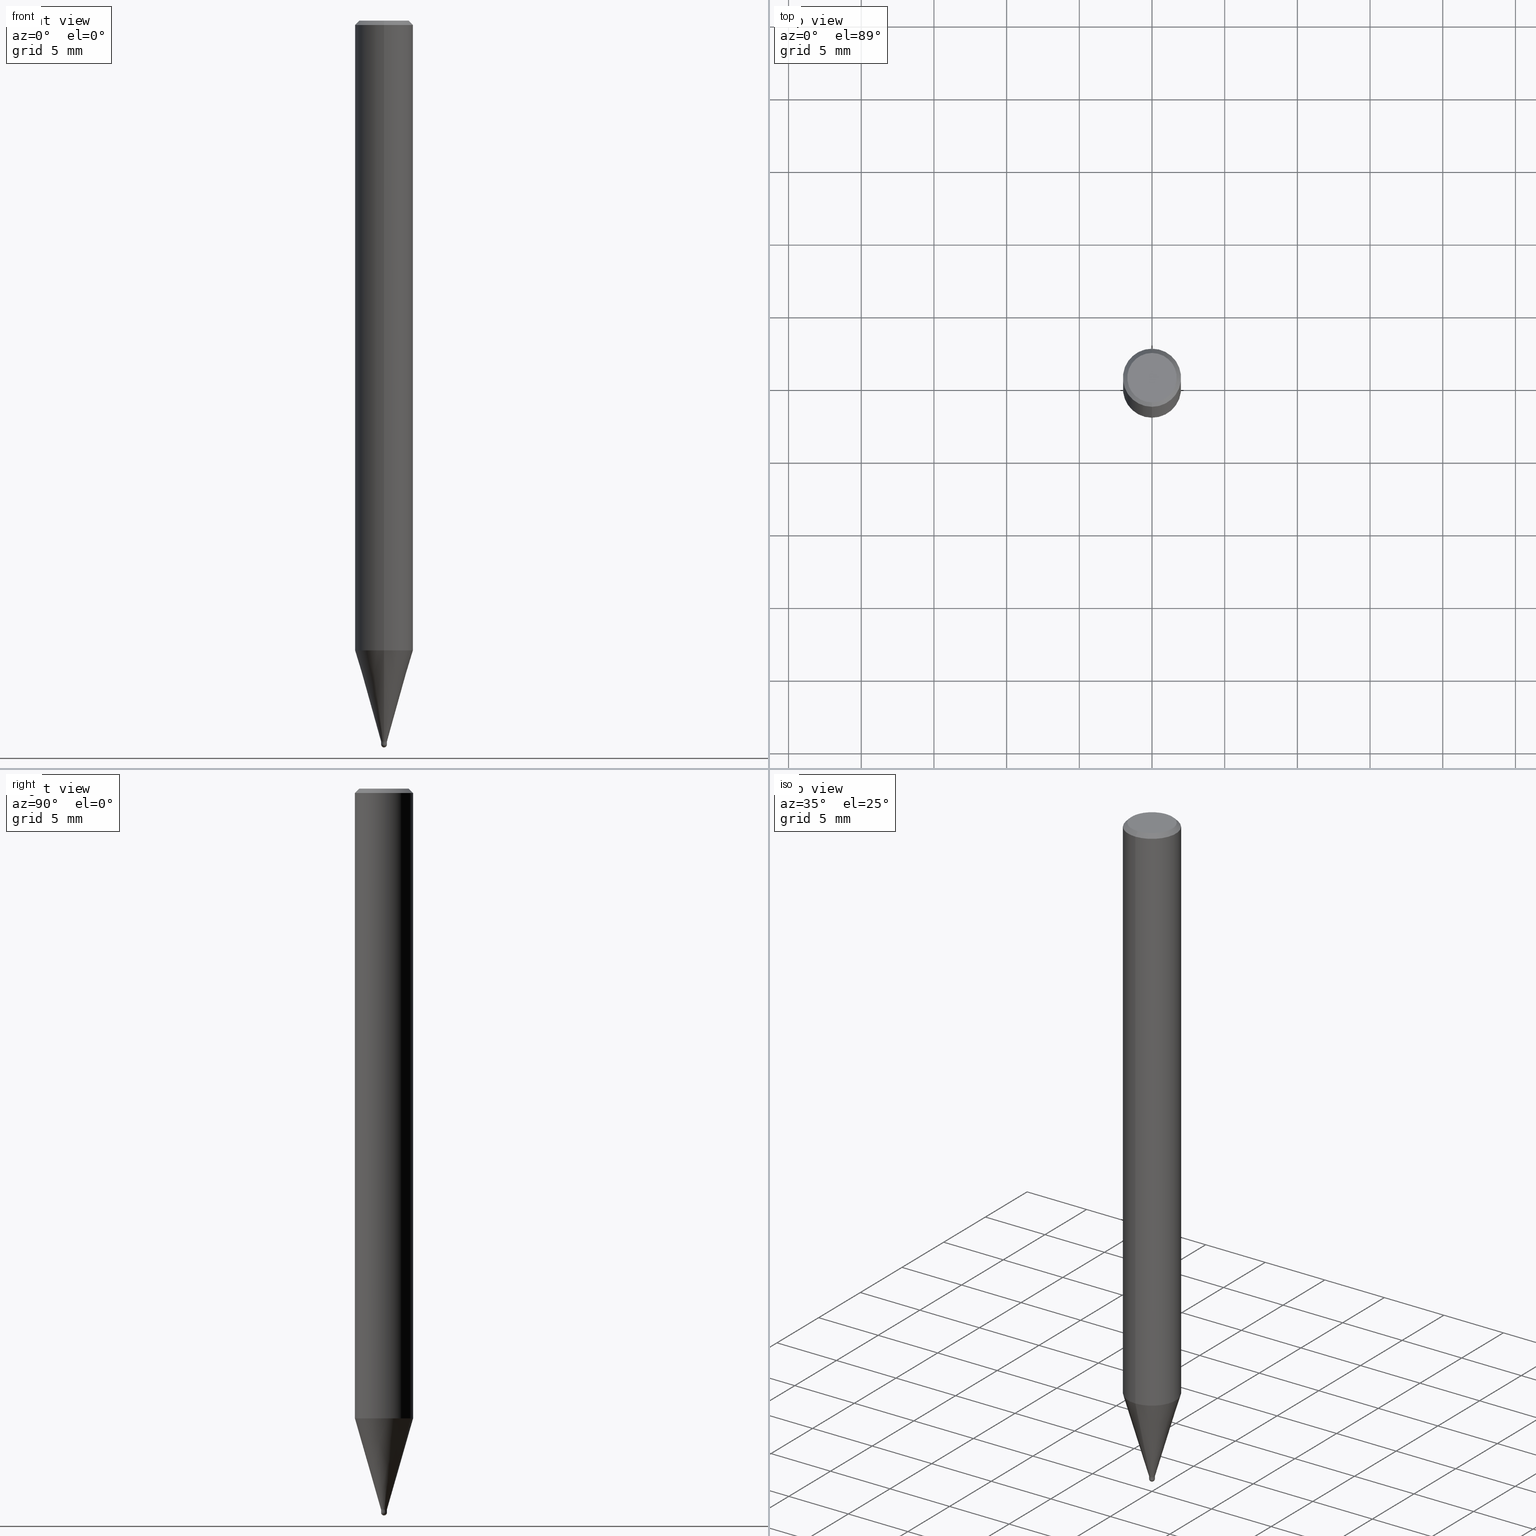
[diagram: canonical four-view strip — front | top / right | iso, engineering-drawing reading convention]
A machine part, canonical four-view strip (front | top / right | iso — engineering-drawing reading convention). The complete STEP part file that produces these views, byte-faithful:
ISO-10303-21;
HEADER;
FILE_DESCRIPTION(('no description'),'unknown implementation level');
FILE_NAME('HSB2004-0040-Huellk.stp','  ',('CIMSOURCE GmbH'),('CADClick - KiM GmbH - www.kimweb.de'),'unknown preprocess','ACIS','unknown authorization');
FILE_SCHEMA(('automotive_design'));
ENDSEC;
DATA;
#1=MECHANICAL_DESIGN_GEOMETRIC_PRESENTATION_REPRESENTATION(' ',(#14,#15,#16,#17,#18,#19,#20,#21,#22,#23,#24,#25,#26,#27,#28,#29,#30,#31,#32,#33,#34,#35,#36,#37,#38,#39,#40,#41,#42,#43,#44,#45,#46,#47,#48,#49,#50,#51,#52,#53,#54,#55,#56,#57,#58,#59,#60,#61,#62,#63,#64,#65,#66),#10);
#2=PRODUCT_DEFINITION_CONTEXT('',#67,'design');
#3=APPLICATION_PROTOCOL_DEFINITION('INTERNATIONAL STANDARD','automotive_design',1994,#67);
#4=PRODUCT_CATEGORY_RELATIONSHIP('NONE','NONE',#68,#69);
#5=SHAPE_DEFINITION_REPRESENTATION(#70,#71);
#6=PRODUCT_DEFINITION_CONTEXT('',#72,'design');
#7=APPLICATION_PROTOCOL_DEFINITION('INTERNATIONAL STANDARD','automotive_design',1994,#72);
#8=PRODUCT_CATEGORY_RELATIONSHIP('NONE','NONE',#73,#74);
#9=SHAPE_DEFINITION_REPRESENTATION(#75,#76);
#10= (GEOMETRIC_REPRESENTATION_CONTEXT(3)GLOBAL_UNCERTAINTY_ASSIGNED_CONTEXT((#79))GLOBAL_UNIT_ASSIGNED_CONTEXT((#81,#82,#83))REPRESENTATION_CONTEXT('NONE','WORKSPACE'));
#14=STYLED_ITEM('',(#85),#86);
#15=STYLED_ITEM('',(#87),#88);
#16=STYLED_ITEM('',(#89),#90);
#17=STYLED_ITEM('',(#91),#92);
#18=STYLED_ITEM('',(#93),#94);
#19=STYLED_ITEM('',(#95),#96);
#20=STYLED_ITEM('',(#97),#98);
#21=STYLED_ITEM('',(#99),#100);
#22=STYLED_ITEM('',(#101),#102);
#23=STYLED_ITEM('',(#103),#104);
#24=STYLED_ITEM('',(#105),#106);
#25=STYLED_ITEM('',(#107),#108);
#26=STYLED_ITEM('',(#109),#110);
#27=STYLED_ITEM('',(#111),#112);
#28=STYLED_ITEM('',(#113),#114);
#29=STYLED_ITEM('',(#115),#116);
#30=STYLED_ITEM('',(#117),#118);
#31=STYLED_ITEM('',(#119),#120);
#32=STYLED_ITEM('',(#121),#122);
#33=STYLED_ITEM('',(#123),#124);
#34=STYLED_ITEM('',(#125),#126);
#35=STYLED_ITEM('',(#127),#128);
#36=STYLED_ITEM('',(#129),#130);
#37=STYLED_ITEM('',(#131),#132);
#38=STYLED_ITEM('',(#133),#134);
#39=STYLED_ITEM('',(#135),#136);
#40=STYLED_ITEM('',(#137),#138);
#41=STYLED_ITEM('',(#139),#140);
#42=STYLED_ITEM('',(#141),#142);
#43=STYLED_ITEM('',(#143),#144);
#44=STYLED_ITEM('',(#145),#146);
#45=STYLED_ITEM('',(#147),#148);
#46=STYLED_ITEM('',(#149),#150);
#47=STYLED_ITEM('',(#151),#152);
#48=STYLED_ITEM('',(#153),#154);
#49=STYLED_ITEM('',(#155),#156);
#50=STYLED_ITEM('',(#157),#158);
#51=STYLED_ITEM('',(#159),#160);
#52=STYLED_ITEM('',(#161),#162);
#53=STYLED_ITEM('',(#163),#164);
#54=STYLED_ITEM('',(#165),#166);
#55=STYLED_ITEM('',(#167),#168);
#56=STYLED_ITEM('',(#169),#170);
#57=STYLED_ITEM('',(#171),#172);
#58=STYLED_ITEM('',(#173),#174);
#59=STYLED_ITEM('',(#175),#176);
#60=STYLED_ITEM('',(#177),#178);
#61=STYLED_ITEM('',(#179),#180);
#62=STYLED_ITEM('',(#181),#182);
#63=STYLED_ITEM('',(#183),#184);
#64=STYLED_ITEM('',(#185),#186);
#65=STYLED_ITEM('',(#187),#188);
#66=STYLED_ITEM('',(#189),#190);
#67=APPLICATION_CONTEXT(' ');
#68=PRODUCT_CATEGORY('part','NONE');
#69=PRODUCT_RELATED_PRODUCT_CATEGORY('detail',' ',(#191));
#70=PRODUCT_DEFINITION_SHAPE('NONE','NONE',#192);
#71=ADVANCED_BREP_SHAPE_REPRESENTATION('1',(#124,#193),#10);
#72=APPLICATION_CONTEXT(' ');
#73=PRODUCT_CATEGORY('part','NONE');
#74=PRODUCT_RELATED_PRODUCT_CATEGORY('detail',' ',(#194));
#75=PRODUCT_DEFINITION_SHAPE('NONE','NONE',#195);
#76=ADVANCED_BREP_SHAPE_REPRESENTATION('2',(#120,#196),#10);
#79=UNCERTAINTY_MEASURE_WITH_UNIT(LENGTH_MEASURE(1.0E-006),#81,'','');
#81= (CONVERSION_BASED_UNIT('MILLIMETRE',#199)LENGTH_UNIT()NAMED_UNIT(#202));
#82= (NAMED_UNIT(#204)PLANE_ANGLE_UNIT()SI_UNIT($,.RADIAN.));
#83= (NAMED_UNIT(#204)SOLID_ANGLE_UNIT()SI_UNIT($,.STERADIAN.));
#85=PRESENTATION_STYLE_ASSIGNMENT((#210));
#86=ADVANCED_FACE('',(#211),#212,.T.);
#87=PRESENTATION_STYLE_ASSIGNMENT((#213));
#88=EDGE_CURVE('',#108,#122,#214,.T.);
#89=PRESENTATION_STYLE_ASSIGNMENT((#215));
#90=VERTEX_POINT('',#216);
#91=PRESENTATION_STYLE_ASSIGNMENT((#217));
#92=ADVANCED_FACE('',(#218),#219,.T.);
#93=PRESENTATION_STYLE_ASSIGNMENT((#220));
#94=VERTEX_POINT('',#221);
#95=PRESENTATION_STYLE_ASSIGNMENT((#222));
#96=EDGE_CURVE('',#108,#102,#223,.T.);
#97=PRESENTATION_STYLE_ASSIGNMENT((#224));
#98=EDGE_CURVE('',#114,#142,#225,.T.);
#99=PRESENTATION_STYLE_ASSIGNMENT((#226));
#100=VERTEX_POINT('',#227);
#101=PRESENTATION_STYLE_ASSIGNMENT((#228));
#102=VERTEX_POINT('',#229);
#103=PRESENTATION_STYLE_ASSIGNMENT((#230));
#104=VERTEX_POINT('',#231);
#105=PRESENTATION_STYLE_ASSIGNMENT((#232));
#106=EDGE_CURVE('',#122,#108,#233,.T.);
#107=PRESENTATION_STYLE_ASSIGNMENT((#234));
#108=VERTEX_POINT('',#235);
#109=PRESENTATION_STYLE_ASSIGNMENT((#236));
#110=VERTEX_POINT('',#237);
#111=PRESENTATION_STYLE_ASSIGNMENT((#238));
#112=EDGE_CURVE('',#122,#100,#239,.T.);
#113=PRESENTATION_STYLE_ASSIGNMENT((#240));
#114=VERTEX_POINT('',#241);
#115=PRESENTATION_STYLE_ASSIGNMENT((#242));
#116=EDGE_CURVE('',#114,#168,#243,.T.);
#117=PRESENTATION_STYLE_ASSIGNMENT((#244));
#118=EDGE_CURVE('',#110,#132,#245,.T.);
#119=PRESENTATION_STYLE_ASSIGNMENT((#246));
#120=MANIFOLD_SOLID_BREP('2',#247);
#121=PRESENTATION_STYLE_ASSIGNMENT((#248));
#122=VERTEX_POINT('',#249);
#123=PRESENTATION_STYLE_ASSIGNMENT((#250));
#124=MANIFOLD_SOLID_BREP('1',#251);
#125=PRESENTATION_STYLE_ASSIGNMENT((#252));
#126=EDGE_CURVE('',#114,#142,#253,.T.);
#127=PRESENTATION_STYLE_ASSIGNMENT((#254));
#128=EDGE_CURVE('',#168,#104,#255,.T.);
#129=PRESENTATION_STYLE_ASSIGNMENT((#256));
#130=ADVANCED_FACE('',(#257),#258,.T.);
#131=PRESENTATION_STYLE_ASSIGNMENT((#259));
#132=VERTEX_POINT('',#260);
#133=PRESENTATION_STYLE_ASSIGNMENT((#261));
#134=EDGE_CURVE('',#132,#110,#262,.T.);
#135=PRESENTATION_STYLE_ASSIGNMENT((#263));
#136=EDGE_CURVE('',#94,#132,#264,.T.);
#137=PRESENTATION_STYLE_ASSIGNMENT((#265));
#138=ADVANCED_FACE('',(#266),#267,.T.);
#139=PRESENTATION_STYLE_ASSIGNMENT((#268));
#140=EDGE_CURVE('',#104,#142,#269,.T.);
#141=PRESENTATION_STYLE_ASSIGNMENT((#270));
#142=VERTEX_POINT('',#271);
#143=PRESENTATION_STYLE_ASSIGNMENT((#272));
#144=ADVANCED_FACE('',(#273),#274,.T.);
#145=PRESENTATION_STYLE_ASSIGNMENT((#275));
#146=EDGE_CURVE('',#104,#168,#276,.T.);
#147=PRESENTATION_STYLE_ASSIGNMENT((#277));
#148=EDGE_CURVE('',#90,#122,#278,.T.);
#149=PRESENTATION_STYLE_ASSIGNMENT((#279));
#150=ADVANCED_FACE('',(#280),#281,.T.);
#151=PRESENTATION_STYLE_ASSIGNMENT((#282));
#152=EDGE_CURVE('',#110,#188,#283,.T.);
#153=PRESENTATION_STYLE_ASSIGNMENT((#284));
#154=ADVANCED_FACE('',(#285),#286,.T.);
#155=PRESENTATION_STYLE_ASSIGNMENT((#287));
#156=VERTEX_POINT('',#288);
#157=PRESENTATION_STYLE_ASSIGNMENT((#289));
#158=ADVANCED_FACE('',(#290),#291,.T.);
#159=PRESENTATION_STYLE_ASSIGNMENT((#292));
#160=ADVANCED_FACE('',(#293),#294,.T.);
#161=PRESENTATION_STYLE_ASSIGNMENT((#295));
#162=ADVANCED_FACE('',(#296),#297,.T.);
#163=PRESENTATION_STYLE_ASSIGNMENT((#298));
#164=EDGE_CURVE('',#142,#114,#299,.T.);
#165=PRESENTATION_STYLE_ASSIGNMENT((#300));
#166=EDGE_CURVE('',#156,#100,#301,.T.);
#167=PRESENTATION_STYLE_ASSIGNMENT((#302));
#168=VERTEX_POINT('',#303);
#169=PRESENTATION_STYLE_ASSIGNMENT((#304));
#170=EDGE_CURVE('',#102,#90,#305,.T.);
#171=PRESENTATION_STYLE_ASSIGNMENT((#306));
#172=ADVANCED_FACE('',(#307,#308),#309,.T.);
#173=PRESENTATION_STYLE_ASSIGNMENT((#310));
#174=EDGE_CURVE('',#156,#108,#311,.T.);
#175=PRESENTATION_STYLE_ASSIGNMENT((#312));
#176=EDGE_CURVE('',#188,#94,#313,.T.);
#177=PRESENTATION_STYLE_ASSIGNMENT((#314));
#178=EDGE_CURVE('',#100,#156,#315,.T.);
#179=PRESENTATION_STYLE_ASSIGNMENT((#316));
#180=EDGE_CURVE('',#94,#188,#317,.T.);
#181=PRESENTATION_STYLE_ASSIGNMENT((#318));
#182=ADVANCED_FACE('',(#319),#320,.T.);
#183=PRESENTATION_STYLE_ASSIGNMENT((#321));
#184=ADVANCED_FACE('',(#322),#323,.T.);
#185=PRESENTATION_STYLE_ASSIGNMENT((#324));
#186=EDGE_CURVE('',#90,#102,#325,.T.);
#187=PRESENTATION_STYLE_ASSIGNMENT((#326));
#188=VERTEX_POINT('',#327);
#189=PRESENTATION_STYLE_ASSIGNMENT((#328));
#190=ADVANCED_FACE('',(#329),#330,.T.);
#191=PRODUCT('1','1','PART-1-DESC',(#331));
#192=PRODUCT_DEFINITION('NONE','NONE',#332,#2);
#193=AXIS2_PLACEMENT_3D('',#333,#334,#335);
#194=PRODUCT('2','2','PART-2-DESC',(#336));
#195=PRODUCT_DEFINITION('NONE','NONE',#337,#6);
#196=AXIS2_PLACEMENT_3D('',#338,#339,#340);
#199=LENGTH_MEASURE_WITH_UNIT(LENGTH_MEASURE(1.0),#341);
#202=DIMENSIONAL_EXPONENTS(1.0,0.0,0.0,0.0,0.0,0.0,0.0);
#204=DIMENSIONAL_EXPONENTS(0.0,0.0,0.0,0.0,0.0,0.0,0.0);
#210=SURFACE_STYLE_USAGE(.BOTH.,#342);
#211=FACE_OUTER_BOUND('',#343,.T.);
#212=PLANE('',#344);
#213=CURVE_STYLE('',#345,POSITIVE_LENGTH_MEASURE(1.0E-006),#346);
#214=CIRCLE('',#347,2.0);
#215=POINT_STYLE(' ',#348,POSITIVE_LENGTH_MEASURE(1.0E-006),#349);
#216=CARTESIAN_POINT('',(2.44921270764475E-016,-2.0,-43.323));
#217=SURFACE_STYLE_USAGE(.BOTH.,#350);
#218=FACE_OUTER_BOUND('',#351,.T.);
#219=CONICAL_SURFACE('',#352,1.85,0.785398163397453);
#220=POINT_STYLE(' ',#353,POSITIVE_LENGTH_MEASURE(1.0E-006),#354);
#221=CARTESIAN_POINT('',(2.44860040446785E-017,-0.19995,-49.6));
#222=CURVE_STYLE('',#355,POSITIVE_LENGTH_MEASURE(1.0E-006),#356);
#223=LINE('',#357,#358);
#224=CURVE_STYLE('',#359,POSITIVE_LENGTH_MEASURE(1.0E-006),#360);
#225=CIRCLE('',#361,0.2);
#226=POINT_STYLE(' ',#362,POSITIVE_LENGTH_MEASURE(1.0E-006),#363);
#227=CARTESIAN_POINT('',(2.08183080149804E-016,-1.7,0.0));
#228=POINT_STYLE(' ',#364,POSITIVE_LENGTH_MEASURE(1.0E-006),#365);
#229=CARTESIAN_POINT('',(0.0,2.0,-43.323));
#230=POINT_STYLE(' ',#366,POSITIVE_LENGTH_MEASURE(1.0E-006),#367);
#231=CARTESIAN_POINT('',(0.0,0.1999,-49.6));
#232=CURVE_STYLE('',#368,POSITIVE_LENGTH_MEASURE(1.0E-006),#369);
#233=CIRCLE('',#370,2.0);
#234=POINT_STYLE(' ',#371,POSITIVE_LENGTH_MEASURE(1.0E-006),#372);
#235=CARTESIAN_POINT('',(0.0,2.0,-0.299999999999997));
#236=POINT_STYLE(' ',#373,POSITIVE_LENGTH_MEASURE(1.0E-006),#374);
#237=CARTESIAN_POINT('',(0.0,1.99995,-43.323));
#238=CURVE_STYLE('',#375,POSITIVE_LENGTH_MEASURE(1.0E-006),#376);
#239=LINE('',#377,#378);
#240=POINT_STYLE(' ',#379,POSITIVE_LENGTH_MEASURE(1.0E-006),#380);
#241=CARTESIAN_POINT('',(2.44921270764475E-017,-0.2,-49.8));
#242=CURVE_STYLE('',#381,POSITIVE_LENGTH_MEASURE(1.0E-006),#382);
#243=LINE('',#383,#384);
#244=CURVE_STYLE('',#385,POSITIVE_LENGTH_MEASURE(1.0E-006),#386);
#245=CIRCLE('',#387,1.99995);
#246=SURFACE_STYLE_USAGE(.BOTH.,#388);
#247=CLOSED_SHELL('',(#158,#184,#162,#154,#160));
#248=POINT_STYLE(' ',#389,POSITIVE_LENGTH_MEASURE(1.0E-006),#390);
#249=CARTESIAN_POINT('',(2.44921270764475E-016,-2.0,-0.299999999999997));
#250=SURFACE_STYLE_USAGE(.BOTH.,#391);
#251=CLOSED_SHELL('',(#138,#150,#92,#172,#86,#190,#182,#130,#144));
#252=CURVE_STYLE('',#392,POSITIVE_LENGTH_MEASURE(1.0E-006),#393);
#253=CIRCLE('',#394,0.2);
#254=CURVE_STYLE('',#395,POSITIVE_LENGTH_MEASURE(1.0E-006),#396);
#255=CIRCLE('',#397,0.1999);
#256=SURFACE_STYLE_USAGE(.BOTH.,#398);
#257=FACE_OUTER_BOUND('',#399,.T.);
#258=CONICAL_SURFACE('',#400,1.09995,0.279267285283396);
#259=POINT_STYLE(' ',#401,POSITIVE_LENGTH_MEASURE(1.0E-006),#402);
#260=CARTESIAN_POINT('',(2.44915147732706E-016,-1.99995,-43.323));
#261=CURVE_STYLE('',#403,POSITIVE_LENGTH_MEASURE(1.0E-006),#404);
#262=CIRCLE('',#405,1.99995);
#263=CURVE_STYLE('',#406,POSITIVE_LENGTH_MEASURE(1.0E-006),#407);
#264=LINE('',#408,#409);
#265=SURFACE_STYLE_USAGE(.BOTH.,#410);
#266=FACE_OUTER_BOUND('',#411,.T.);
#267=CONICAL_SURFACE('',#412,1.09995,0.279267285283396);
#268=CURVE_STYLE('',#413,POSITIVE_LENGTH_MEASURE(1.0E-006),#414);
#269=LINE('',#415,#416);
#270=POINT_STYLE(' ',#417,POSITIVE_LENGTH_MEASURE(1.0E-006),#418);
#271=CARTESIAN_POINT('',(0.0,0.2,-49.8));
#272=SURFACE_STYLE_USAGE(.BOTH.,#419);
#273=FACE_OUTER_BOUND('',#420,.T.);
#274=PLANE('',#421);
#275=CURVE_STYLE('',#422,POSITIVE_LENGTH_MEASURE(1.0E-006),#423);
#276=CIRCLE('',#424,0.1999);
#277=CURVE_STYLE('',#425,POSITIVE_LENGTH_MEASURE(1.0E-006),#426);
#278=LINE('',#427,#428);
#279=SURFACE_STYLE_USAGE(.BOTH.,#429);
#280=FACE_OUTER_BOUND('',#430,.T.);
#281=CYLINDRICAL_SURFACE('',#431,2.0);
#282=CURVE_STYLE('',#432,POSITIVE_LENGTH_MEASURE(1.0E-006),#433);
#283=LINE('',#434,#435);
#284=SURFACE_STYLE_USAGE(.BOTH.,#436);
#285=FACE_OUTER_BOUND('',#437,.T.);
#286=CONICAL_SURFACE('',#438,0.19995,0.000499999958333423);
#287=POINT_STYLE(' ',#439,POSITIVE_LENGTH_MEASURE(1.0E-006),#440);
#288=CARTESIAN_POINT('',(0.0,1.7,0.0));
#289=SURFACE_STYLE_USAGE(.BOTH.,#441);
#290=FACE_OUTER_BOUND('',#442,.T.);
#291=SPHERICAL_SURFACE('',#443,0.2);
#292=SURFACE_STYLE_USAGE(.BOTH.,#444);
#293=FACE_OUTER_BOUND('',#445,.T.);
#294=SPHERICAL_SURFACE('',#446,0.2);
#295=SURFACE_STYLE_USAGE(.BOTH.,#447);
#296=FACE_OUTER_BOUND('',#448,.T.);
#297=PLANE('',#449);
#298=CURVE_STYLE('',#450,POSITIVE_LENGTH_MEASURE(1.0E-006),#451);
#299=CIRCLE('',#452,0.2);
#300=CURVE_STYLE('',#453,POSITIVE_LENGTH_MEASURE(1.0E-006),#454);
#301=CIRCLE('',#455,1.7);
#302=POINT_STYLE(' ',#456,POSITIVE_LENGTH_MEASURE(1.0E-006),#457);
#303=CARTESIAN_POINT('',(2.44798810129093E-017,-0.1999,-49.6));
#304=CURVE_STYLE('',#458,POSITIVE_LENGTH_MEASURE(1.0E-006),#459);
#305=CIRCLE('',#460,2.0);
#306=SURFACE_STYLE_USAGE(.BOTH.,#461);
#307=FACE_OUTER_BOUND('',#462,.T.);
#308=FACE_BOUND('',#463,.T.);
#309=PLANE('',#464);
#310=CURVE_STYLE('',#465,POSITIVE_LENGTH_MEASURE(1.0E-006),#466);
#311=LINE('',#467,#468);
#312=CURVE_STYLE('',#469,POSITIVE_LENGTH_MEASURE(1.0E-006),#470);
#313=CIRCLE('',#471,0.19995);
#314=CURVE_STYLE('',#472,POSITIVE_LENGTH_MEASURE(1.0E-006),#473);
#315=CIRCLE('',#474,1.7);
#316=CURVE_STYLE('',#475,POSITIVE_LENGTH_MEASURE(1.0E-006),#476);
#317=CIRCLE('',#477,0.19995);
#318=SURFACE_STYLE_USAGE(.BOTH.,#478);
#319=FACE_OUTER_BOUND('',#479,.T.);
#320=CYLINDRICAL_SURFACE('',#480,2.0);
#321=SURFACE_STYLE_USAGE(.BOTH.,#481);
#322=FACE_OUTER_BOUND('',#482,.T.);
#323=CONICAL_SURFACE('',#483,0.19995,0.000499999958333423);
#324=CURVE_STYLE('',#484,POSITIVE_LENGTH_MEASURE(1.0E-006),#485);
#325=CIRCLE('',#486,2.0);
#326=POINT_STYLE(' ',#487,POSITIVE_LENGTH_MEASURE(1.0E-006),#488);
#327=CARTESIAN_POINT('',(0.0,0.19995,-49.6));
#328=SURFACE_STYLE_USAGE(.BOTH.,#489);
#329=FACE_OUTER_BOUND('',#490,.T.);
#330=CONICAL_SURFACE('',#491,1.85,0.785398163397453);
#331=PRODUCT_CONTEXT('',#67,'mechanical');
#332=PRODUCT_DEFINITION_FORMATION_WITH_SPECIFIED_SOURCE(' ','NONE',#191,.NOT_KNOWN.);
#333=CARTESIAN_POINT('',(0.0,0.0,0.0));
#334=DIRECTION('',(0.0,0.0,1.0));
#335=DIRECTION('',(1.0,0.0,0.0));
#336=PRODUCT_CONTEXT('',#72,'mechanical');
#337=PRODUCT_DEFINITION_FORMATION_WITH_SPECIFIED_SOURCE(' ','NONE',#194,.NOT_KNOWN.);
#338=CARTESIAN_POINT('',(0.0,0.0,0.0));
#339=DIRECTION('',(0.0,0.0,1.0));
#340=DIRECTION('',(1.0,0.0,0.0));
#341= (NAMED_UNIT(#202)LENGTH_UNIT()SI_UNIT(.MILLI.,.METRE.));
#342=SURFACE_SIDE_STYLE('',(#493));
#343=EDGE_LOOP('',(#494,#495));
#344=AXIS2_PLACEMENT_3D('',#496,#497,#498);
#345=DRAUGHTING_PRE_DEFINED_CURVE_FONT('continuous');
#346=COLOUR_RGB('',0.498039215803146,0.498039215803146,0.498039215803146);
#347=AXIS2_PLACEMENT_3D('',#499,#500,#501);
#348=PRE_DEFINED_MARKER('');
#349=COLOUR_RGB('',0.498039215803146,0.498039215803146,0.498039215803146);
#350=SURFACE_SIDE_STYLE('',(#502));
#351=EDGE_LOOP('',(#503,#504,#505,#506));
#352=AXIS2_PLACEMENT_3D('',#507,#508,#509);
#353=PRE_DEFINED_MARKER('');
#354=COLOUR_RGB('',0.498039215803146,0.498039215803146,0.498039215803146);
#355=DRAUGHTING_PRE_DEFINED_CURVE_FONT('continuous');
#356=COLOUR_RGB('',0.498039215803146,0.498039215803146,0.498039215803146);
#357=CARTESIAN_POINT('',(-2.44921270764475E-016,2.0,-21.8115));
#358=VECTOR('',#510,1.0);
#359=DRAUGHTING_PRE_DEFINED_CURVE_FONT('continuous');
#360=COLOUR_RGB('',0.800000011920929,0.800000011920929,0.800000011920929);
#361=AXIS2_PLACEMENT_3D('',#511,#512,#513);
#362=PRE_DEFINED_MARKER('');
#363=COLOUR_RGB('',0.498039215803146,0.498039215803146,0.498039215803146);
#364=PRE_DEFINED_MARKER('');
#365=COLOUR_RGB('',0.498039215803146,0.498039215803146,0.498039215803146);
#366=PRE_DEFINED_MARKER('');
#367=COLOUR_RGB('',0.800000011920929,0.800000011920929,0.800000011920929);
#368=DRAUGHTING_PRE_DEFINED_CURVE_FONT('continuous');
#369=COLOUR_RGB('',0.498039215803146,0.498039215803146,0.498039215803146);
#370=AXIS2_PLACEMENT_3D('',#514,#515,#516);
#371=PRE_DEFINED_MARKER('');
#372=COLOUR_RGB('',0.498039215803146,0.498039215803146,0.498039215803146);
#373=PRE_DEFINED_MARKER('');
#374=COLOUR_RGB('',0.498039215803146,0.498039215803146,0.498039215803146);
#375=DRAUGHTING_PRE_DEFINED_CURVE_FONT('continuous');
#376=COLOUR_RGB('',0.498039215803146,0.498039215803146,0.498039215803146);
#377=CARTESIAN_POINT('',(2.2655217545714E-016,-1.85,-0.149999999999999));
#378=VECTOR('',#517,1.0);
#379=PRE_DEFINED_MARKER('');
#380=COLOUR_RGB('',0.800000011920929,0.800000011920929,0.800000011920929);
#381=DRAUGHTING_PRE_DEFINED_CURVE_FONT('continuous');
#382=COLOUR_RGB('',0.800000011920929,0.800000011920929,0.800000011920929);
#383=CARTESIAN_POINT('',(2.44860040446784E-017,-0.19995,-49.7));
#384=VECTOR('',#518,1.0);
#385=DRAUGHTING_PRE_DEFINED_CURVE_FONT('continuous');
#386=COLOUR_RGB('',0.498039215803146,0.498039215803146,0.498039215803146);
#387=AXIS2_PLACEMENT_3D('',#519,#520,#521);
#388=SURFACE_SIDE_STYLE('',(#522));
#389=PRE_DEFINED_MARKER('');
#390=COLOUR_RGB('',0.498039215803146,0.498039215803146,0.498039215803146);
#391=SURFACE_SIDE_STYLE('',(#523));
#392=DRAUGHTING_PRE_DEFINED_CURVE_FONT('continuous');
#393=COLOUR_RGB('',0.800000011920929,0.800000011920929,0.800000011920929);
#394=AXIS2_PLACEMENT_3D('',#524,#525,#526);
#395=DRAUGHTING_PRE_DEFINED_CURVE_FONT('continuous');
#396=COLOUR_RGB('',0.800000011920929,0.800000011920929,0.800000011920929);
#397=AXIS2_PLACEMENT_3D('',#527,#528,#529);
#398=SURFACE_SIDE_STYLE('',(#530));
#399=EDGE_LOOP('',(#531,#532,#533,#534));
#400=AXIS2_PLACEMENT_3D('',#535,#536,#537);
#401=PRE_DEFINED_MARKER('');
#402=COLOUR_RGB('',0.498039215803146,0.498039215803146,0.498039215803146);
#403=DRAUGHTING_PRE_DEFINED_CURVE_FONT('continuous');
#404=COLOUR_RGB('',0.498039215803146,0.498039215803146,0.498039215803146);
#405=AXIS2_PLACEMENT_3D('',#538,#539,#540);
#406=DRAUGHTING_PRE_DEFINED_CURVE_FONT('continuous');
#407=COLOUR_RGB('',0.498039215803146,0.498039215803146,0.498039215803146);
#408=CARTESIAN_POINT('',(1.34700575888692E-016,-1.09995,-46.4615));
#409=VECTOR('',#541,1.0);
#410=SURFACE_SIDE_STYLE('',(#542));
#411=EDGE_LOOP('',(#543,#544,#545,#546));
#412=AXIS2_PLACEMENT_3D('',#547,#548,#549);
#413=DRAUGHTING_PRE_DEFINED_CURVE_FONT('continuous');
#414=COLOUR_RGB('',0.800000011920929,0.800000011920929,0.800000011920929);
#415=CARTESIAN_POINT('',(-2.44860040446784E-017,0.19995,-49.7));
#416=VECTOR('',#550,1.0);
#417=PRE_DEFINED_MARKER('');
#418=COLOUR_RGB('',0.800000011920929,0.800000011920929,0.800000011920929);
#419=SURFACE_SIDE_STYLE('',(#551));
#420=EDGE_LOOP('',(#552,#553));
#421=AXIS2_PLACEMENT_3D('',#554,#555,#556);
#422=DRAUGHTING_PRE_DEFINED_CURVE_FONT('continuous');
#423=COLOUR_RGB('',0.800000011920929,0.800000011920929,0.800000011920929);
#424=AXIS2_PLACEMENT_3D('',#557,#558,#559);
#425=DRAUGHTING_PRE_DEFINED_CURVE_FONT('continuous');
#426=COLOUR_RGB('',0.498039215803146,0.498039215803146,0.498039215803146);
#427=CARTESIAN_POINT('',(2.44921270764475E-016,-2.0,-21.8115));
#428=VECTOR('',#560,1.0);
#429=SURFACE_SIDE_STYLE('',(#561));
#430=EDGE_LOOP('',(#562,#563,#564,#565));
#431=AXIS2_PLACEMENT_3D('',#566,#567,#568);
#432=DRAUGHTING_PRE_DEFINED_CURVE_FONT('continuous');
#433=COLOUR_RGB('',0.498039215803146,0.498039215803146,0.498039215803146);
#434=CARTESIAN_POINT('',(-1.34700575888692E-016,1.09995,-46.4615));
#435=VECTOR('',#569,1.0);
#436=SURFACE_SIDE_STYLE('',(#570));
#437=EDGE_LOOP('',(#571,#572,#573,#574));
#438=AXIS2_PLACEMENT_3D('',#575,#576,#577);
#439=PRE_DEFINED_MARKER('');
#440=COLOUR_RGB('',0.498039215803146,0.498039215803146,0.498039215803146);
#441=SURFACE_SIDE_STYLE('',(#578));
#442=EDGE_LOOP('',(#579,#580));
#443=AXIS2_PLACEMENT_3D('',#581,#582,#583);
#444=SURFACE_SIDE_STYLE('',(#584));
#445=EDGE_LOOP('',(#585,#586));
#446=AXIS2_PLACEMENT_3D('',#587,#588,#589);
#447=SURFACE_SIDE_STYLE('',(#590));
#448=EDGE_LOOP('',(#591,#592));
#449=AXIS2_PLACEMENT_3D('',#593,#594,#595);
#450=DRAUGHTING_PRE_DEFINED_CURVE_FONT('continuous');
#451=COLOUR_RGB('',0.800000011920929,0.800000011920929,0.800000011920929);
#452=AXIS2_PLACEMENT_3D('',#596,#597,#598);
#453=DRAUGHTING_PRE_DEFINED_CURVE_FONT('continuous');
#454=COLOUR_RGB('',0.498039215803146,0.498039215803146,0.498039215803146);
#455=AXIS2_PLACEMENT_3D('',#599,#600,#601);
#456=PRE_DEFINED_MARKER('');
#457=COLOUR_RGB('',0.800000011920929,0.800000011920929,0.800000011920929);
#458=DRAUGHTING_PRE_DEFINED_CURVE_FONT('continuous');
#459=COLOUR_RGB('',0.498039215803146,0.498039215803146,0.498039215803146);
#460=AXIS2_PLACEMENT_3D('',#602,#603,#604);
#461=SURFACE_SIDE_STYLE('',(#605));
#462=EDGE_LOOP('',(#606,#607));
#463=EDGE_LOOP('',(#608,#609));
#464=AXIS2_PLACEMENT_3D('',#610,#611,#612);
#465=DRAUGHTING_PRE_DEFINED_CURVE_FONT('continuous');
#466=COLOUR_RGB('',0.498039215803146,0.498039215803146,0.498039215803146);
#467=CARTESIAN_POINT('',(-2.2655217545714E-016,1.85,-0.149999999999999));
#468=VECTOR('',#613,1.0);
#469=DRAUGHTING_PRE_DEFINED_CURVE_FONT('continuous');
#470=COLOUR_RGB('',0.498039215803146,0.498039215803146,0.498039215803146);
#471=AXIS2_PLACEMENT_3D('',#614,#615,#616);
#472=DRAUGHTING_PRE_DEFINED_CURVE_FONT('continuous');
#473=COLOUR_RGB('',0.498039215803146,0.498039215803146,0.498039215803146);
#474=AXIS2_PLACEMENT_3D('',#617,#618,#619);
#475=DRAUGHTING_PRE_DEFINED_CURVE_FONT('continuous');
#476=COLOUR_RGB('',0.498039215803146,0.498039215803146,0.498039215803146);
#477=AXIS2_PLACEMENT_3D('',#620,#621,#622);
#478=SURFACE_SIDE_STYLE('',(#623));
#479=EDGE_LOOP('',(#624,#625,#626,#627));
#480=AXIS2_PLACEMENT_3D('',#628,#629,#630);
#481=SURFACE_SIDE_STYLE('',(#631));
#482=EDGE_LOOP('',(#632,#633,#634,#635));
#483=AXIS2_PLACEMENT_3D('',#636,#637,#638);
#484=DRAUGHTING_PRE_DEFINED_CURVE_FONT('continuous');
#485=COLOUR_RGB('',0.498039215803146,0.498039215803146,0.498039215803146);
#486=AXIS2_PLACEMENT_3D('',#639,#640,#641);
#487=PRE_DEFINED_MARKER('');
#488=COLOUR_RGB('',0.498039215803146,0.498039215803146,0.498039215803146);
#489=SURFACE_SIDE_STYLE('',(#642));
#490=EDGE_LOOP('',(#643,#644,#645,#646));
#491=AXIS2_PLACEMENT_3D('',#647,#648,#649);
#493=SURFACE_STYLE_FILL_AREA(#650);
#494=ORIENTED_EDGE('',*,*,#166,.F.);
#495=ORIENTED_EDGE('',*,*,#178,.F.);
#496=CARTESIAN_POINT('',(0.0,0.85,0.0));
#497=DIRECTION('',(-0.0,0.0,1.0));
#498=DIRECTION('',(0.0,-1.0,0.0));
#499=CARTESIAN_POINT('',(0.0,0.0,-0.299999999999997));
#500=DIRECTION('',(0.0,0.0,-1.0));
#501=DIRECTION('',(0.0,1.0,0.0));
#502=SURFACE_STYLE_FILL_AREA(#651);
#503=ORIENTED_EDGE('',*,*,#174,.F.);
#504=ORIENTED_EDGE('',*,*,#166,.T.);
#505=ORIENTED_EDGE('',*,*,#112,.F.);
#506=ORIENTED_EDGE('',*,*,#88,.F.);
#507=CARTESIAN_POINT('',(0.0,0.0,-0.149999999999999));
#508=DIRECTION('',(0.0,-0.0,-1.0));
#509=DIRECTION('',(0.0,1.0,0.0));
#510=DIRECTION('',(0.0,0.0,-1.0));
#511=CARTESIAN_POINT('',(0.0,0.0,-49.8));
#512=DIRECTION('',(1.0,0.0,1.22460635382236E-016));
#513=DIRECTION('',(-1.22460635382236E-016,0.0,1.0));
#514=CARTESIAN_POINT('',(0.0,0.0,-0.299999999999997));
#515=DIRECTION('',(0.0,0.0,-1.0));
#516=DIRECTION('',(0.0,1.0,0.0));
#517=DIRECTION('',(-8.6592745707194E-017,0.707106781186551,0.707106781186544));
#518=DIRECTION('',(-6.12303100373408E-020,0.000499999937500095,0.999999875000023));
#519=CARTESIAN_POINT('',(0.0,0.0,-43.323));
#520=DIRECTION('',(0.0,0.0,-1.0));
#521=DIRECTION('',(0.0,1.0,0.0));
#522=SURFACE_STYLE_FILL_AREA(#652);
#523=SURFACE_STYLE_FILL_AREA(#653);
#524=CARTESIAN_POINT('',(0.0,0.0,-49.8));
#525=DIRECTION('',(0.0,0.0,-1.0));
#526=DIRECTION('',(0.0,1.0,0.0));
#527=CARTESIAN_POINT('',(0.0,0.0,-49.6));
#528=DIRECTION('',(0.0,0.0,-1.0));
#529=DIRECTION('',(0.0,1.0,0.0));
#530=SURFACE_STYLE_FILL_AREA(#654);
#531=ORIENTED_EDGE('',*,*,#152,.T.);
#532=ORIENTED_EDGE('',*,*,#180,.F.);
#533=ORIENTED_EDGE('',*,*,#136,.T.);
#534=ORIENTED_EDGE('',*,*,#134,.T.);
#535=CARTESIAN_POINT('',(0.0,0.0,-46.4615));
#536=DIRECTION('',(-0.0,-0.0,1.0));
#537=DIRECTION('',(0.0,1.0,0.0));
#538=CARTESIAN_POINT('',(0.0,0.0,-43.323));
#539=DIRECTION('',(0.0,0.0,-1.0));
#540=DIRECTION('',(0.0,1.0,0.0));
#541=DIRECTION('',(3.37564449732947E-017,-0.275651394980357,0.961257670162056));
#542=SURFACE_STYLE_FILL_AREA(#655);
#543=ORIENTED_EDGE('',*,*,#152,.F.);
#544=ORIENTED_EDGE('',*,*,#118,.T.);
#545=ORIENTED_EDGE('',*,*,#136,.F.);
#546=ORIENTED_EDGE('',*,*,#176,.F.);
#547=CARTESIAN_POINT('',(0.0,0.0,-46.4615));
#548=DIRECTION('',(-0.0,-0.0,1.0));
#549=DIRECTION('',(0.0,1.0,0.0));
#550=DIRECTION('',(-6.12303100373408E-020,0.000499999937500095,-0.999999875000023));
#551=SURFACE_STYLE_FILL_AREA(#656);
#552=ORIENTED_EDGE('',*,*,#176,.T.);
#553=ORIENTED_EDGE('',*,*,#180,.T.);
#554=CARTESIAN_POINT('',(0.0,0.099975,-49.6));
#555=DIRECTION('',(0.0,0.0,-1.0));
#556=DIRECTION('',(0.0,1.0,0.0));
#557=CARTESIAN_POINT('',(0.0,0.0,-49.6));
#558=DIRECTION('',(0.0,0.0,-1.0));
#559=DIRECTION('',(0.0,1.0,0.0));
#560=DIRECTION('',(-0.0,-0.0,1.0));
#561=SURFACE_STYLE_FILL_AREA(#657);
#562=ORIENTED_EDGE('',*,*,#96,.F.);
#563=ORIENTED_EDGE('',*,*,#88,.T.);
#564=ORIENTED_EDGE('',*,*,#148,.F.);
#565=ORIENTED_EDGE('',*,*,#170,.F.);
#566=CARTESIAN_POINT('',(0.0,0.0,-21.8115));
#567=DIRECTION('',(-0.0,-0.0,1.0));
#568=DIRECTION('',(0.0,1.0,0.0));
#569=DIRECTION('',(3.37564449732947E-017,-0.275651394980357,-0.961257670162056));
#570=SURFACE_STYLE_FILL_AREA(#658);
#571=ORIENTED_EDGE('',*,*,#140,.T.);
#572=ORIENTED_EDGE('',*,*,#126,.F.);
#573=ORIENTED_EDGE('',*,*,#116,.T.);
#574=ORIENTED_EDGE('',*,*,#128,.T.);
#575=CARTESIAN_POINT('',(0.0,0.0,-49.7));
#576=DIRECTION('',(0.0,-0.0,-1.0));
#577=DIRECTION('',(0.0,1.0,0.0));
#578=SURFACE_STYLE_FILL_AREA(#659);
#579=ORIENTED_EDGE('',*,*,#98,.F.);
#580=ORIENTED_EDGE('',*,*,#126,.T.);
#581=CARTESIAN_POINT('',(0.0,0.0,-49.8));
#582=DIRECTION('',(0.0,1.0,0.0));
#583=DIRECTION('',(0.0,0.0,-1.0));
#584=SURFACE_STYLE_FILL_AREA(#660);
#585=ORIENTED_EDGE('',*,*,#98,.T.);
#586=ORIENTED_EDGE('',*,*,#164,.T.);
#587=CARTESIAN_POINT('',(0.0,0.0,-49.8));
#588=DIRECTION('',(0.0,1.0,0.0));
#589=DIRECTION('',(0.0,0.0,-1.0));
#590=SURFACE_STYLE_FILL_AREA(#661);
#591=ORIENTED_EDGE('',*,*,#146,.F.);
#592=ORIENTED_EDGE('',*,*,#128,.F.);
#593=CARTESIAN_POINT('',(0.0,0.09995,-49.6));
#594=DIRECTION('',(-0.0,0.0,1.0));
#595=DIRECTION('',(0.0,-1.0,0.0));
#596=CARTESIAN_POINT('',(0.0,0.0,-49.8));
#597=DIRECTION('',(0.0,0.0,-1.0));
#598=DIRECTION('',(0.0,1.0,0.0));
#599=CARTESIAN_POINT('',(0.0,0.0,0.0));
#600=DIRECTION('',(0.0,0.0,-1.0));
#601=DIRECTION('',(0.0,1.0,0.0));
#602=CARTESIAN_POINT('',(0.0,0.0,-43.323));
#603=DIRECTION('',(0.0,0.0,-1.0));
#604=DIRECTION('',(0.0,1.0,0.0));
#605=SURFACE_STYLE_FILL_AREA(#662);
#606=ORIENTED_EDGE('',*,*,#170,.T.);
#607=ORIENTED_EDGE('',*,*,#186,.T.);
#608=ORIENTED_EDGE('',*,*,#118,.F.);
#609=ORIENTED_EDGE('',*,*,#134,.F.);
#610=CARTESIAN_POINT('',(0.0,1.0,-43.323));
#611=DIRECTION('',(0.0,0.0,-1.0));
#612=DIRECTION('',(0.0,1.0,0.0));
#613=DIRECTION('',(-8.6592745707194E-017,0.707106781186551,-0.707106781186544));
#614=CARTESIAN_POINT('',(0.0,0.0,-49.6));
#615=DIRECTION('',(0.0,0.0,-1.0));
#616=DIRECTION('',(0.0,1.0,0.0));
#617=CARTESIAN_POINT('',(0.0,0.0,0.0));
#618=DIRECTION('',(0.0,0.0,-1.0));
#619=DIRECTION('',(0.0,1.0,0.0));
#620=CARTESIAN_POINT('',(0.0,0.0,-49.6));
#621=DIRECTION('',(0.0,0.0,-1.0));
#622=DIRECTION('',(0.0,1.0,0.0));
#623=SURFACE_STYLE_FILL_AREA(#663);
#624=ORIENTED_EDGE('',*,*,#96,.T.);
#625=ORIENTED_EDGE('',*,*,#186,.F.);
#626=ORIENTED_EDGE('',*,*,#148,.T.);
#627=ORIENTED_EDGE('',*,*,#106,.T.);
#628=CARTESIAN_POINT('',(0.0,0.0,-21.8115));
#629=DIRECTION('',(-0.0,-0.0,1.0));
#630=DIRECTION('',(0.0,1.0,0.0));
#631=SURFACE_STYLE_FILL_AREA(#664);
#632=ORIENTED_EDGE('',*,*,#140,.F.);
#633=ORIENTED_EDGE('',*,*,#146,.T.);
#634=ORIENTED_EDGE('',*,*,#116,.F.);
#635=ORIENTED_EDGE('',*,*,#164,.F.);
#636=CARTESIAN_POINT('',(0.0,0.0,-49.7));
#637=DIRECTION('',(0.0,-0.0,-1.0));
#638=DIRECTION('',(0.0,1.0,0.0));
#639=CARTESIAN_POINT('',(0.0,0.0,-43.323));
#640=DIRECTION('',(0.0,0.0,-1.0));
#641=DIRECTION('',(0.0,1.0,0.0));
#642=SURFACE_STYLE_FILL_AREA(#665);
#643=ORIENTED_EDGE('',*,*,#174,.T.);
#644=ORIENTED_EDGE('',*,*,#106,.F.);
#645=ORIENTED_EDGE('',*,*,#112,.T.);
#646=ORIENTED_EDGE('',*,*,#178,.T.);
#647=CARTESIAN_POINT('',(0.0,0.0,-0.149999999999999));
#648=DIRECTION('',(0.0,-0.0,-1.0));
#649=DIRECTION('',(0.0,1.0,0.0));
#650=FILL_AREA_STYLE('',(#666));
#651=FILL_AREA_STYLE('',(#667));
#652=FILL_AREA_STYLE('',(#668));
#653=FILL_AREA_STYLE('',(#669));
#654=FILL_AREA_STYLE('',(#670));
#655=FILL_AREA_STYLE('',(#671));
#656=FILL_AREA_STYLE('',(#672));
#657=FILL_AREA_STYLE('',(#673));
#658=FILL_AREA_STYLE('',(#674));
#659=FILL_AREA_STYLE('',(#675));
#660=FILL_AREA_STYLE('',(#676));
#661=FILL_AREA_STYLE('',(#677));
#662=FILL_AREA_STYLE('',(#678));
#663=FILL_AREA_STYLE('',(#679));
#664=FILL_AREA_STYLE('',(#680));
#665=FILL_AREA_STYLE('',(#681));
#666=FILL_AREA_STYLE_COLOUR('',#682);
#667=FILL_AREA_STYLE_COLOUR('',#683);
#668=FILL_AREA_STYLE_COLOUR('',#684);
#669=FILL_AREA_STYLE_COLOUR('',#685);
#670=FILL_AREA_STYLE_COLOUR('',#686);
#671=FILL_AREA_STYLE_COLOUR('',#687);
#672=FILL_AREA_STYLE_COLOUR('',#688);
#673=FILL_AREA_STYLE_COLOUR('',#689);
#674=FILL_AREA_STYLE_COLOUR('',#690);
#675=FILL_AREA_STYLE_COLOUR('',#691);
#676=FILL_AREA_STYLE_COLOUR('',#692);
#677=FILL_AREA_STYLE_COLOUR('',#693);
#678=FILL_AREA_STYLE_COLOUR('',#694);
#679=FILL_AREA_STYLE_COLOUR('',#695);
#680=FILL_AREA_STYLE_COLOUR('',#696);
#681=FILL_AREA_STYLE_COLOUR('',#697);
#682=COLOUR_RGB('',0.498039215803146,0.498039215803146,0.498039215803146);
#683=COLOUR_RGB('',0.498039215803146,0.498039215803146,0.498039215803146);
#684=COLOUR_RGB('',0.800000011920929,0.800000011920929,0.800000011920929);
#685=COLOUR_RGB('',0.498039215803146,0.498039215803146,0.498039215803146);
#686=COLOUR_RGB('',0.498039215803146,0.498039215803146,0.498039215803146);
#687=COLOUR_RGB('',0.498039215803146,0.498039215803146,0.498039215803146);
#688=COLOUR_RGB('',0.498039215803146,0.498039215803146,0.498039215803146);
#689=COLOUR_RGB('',0.498039215803146,0.498039215803146,0.498039215803146);
#690=COLOUR_RGB('',0.800000011920929,0.800000011920929,0.800000011920929);
#691=COLOUR_RGB('',0.800000011920929,0.800000011920929,0.800000011920929);
#692=COLOUR_RGB('',0.800000011920929,0.800000011920929,0.800000011920929);
#693=COLOUR_RGB('',0.800000011920929,0.800000011920929,0.800000011920929);
#694=COLOUR_RGB('',0.498039215803146,0.498039215803146,0.498039215803146);
#695=COLOUR_RGB('',0.498039215803146,0.498039215803146,0.498039215803146);
#696=COLOUR_RGB('',0.800000011920929,0.800000011920929,0.800000011920929);
#697=COLOUR_RGB('',0.498039215803146,0.498039215803146,0.498039215803146);
#698=AXIS2_PLACEMENT_3D('PCS',#699,#700,#701);
#699=CARTESIAN_POINT('',(0.0,0.0,0.0));
#700=DIRECTION('',(0.0,0.0,1.0));
#701=DIRECTION('',(1.0,0.0,0.0));
#702=AXIS2_PLACEMENT_3D('CIP',#703,#704,#705);
#703=CARTESIAN_POINT('',(0.0,0.0,-50.0));
#704=DIRECTION('',(0.0,0.0,1.0));
#705=DIRECTION('',(1.0,0.0,0.0));
#706=AXIS2_PLACEMENT_3D('CRP',#707,#708,#709);
#707=CARTESIAN_POINT('',(-0.2,0.0,-50.0));
#708=DIRECTION('',(0.0,0.0,1.0));
#709=DIRECTION('',(1.0,0.0,0.0));
#710=AXIS2_PLACEMENT_3D('MCS',#711,#712,#713);
#711=CARTESIAN_POINT('',(0.0,0.0,-43.323));
#712=DIRECTION('',(0.0,0.0,1.0));
#713=DIRECTION('',(1.0,0.0,0.0));
#714=CONSTRUCTIVE_GEOMETRY_REPRESENTATION_RELATIONSHIP('coordinate systems',$,#71,#715);
#715=CONSTRUCTIVE_GEOMETRY_REPRESENTATION('coordinate systems',(#698,#702,#706,#710),#10);
ENDSEC;
END-ISO-10303-21;
